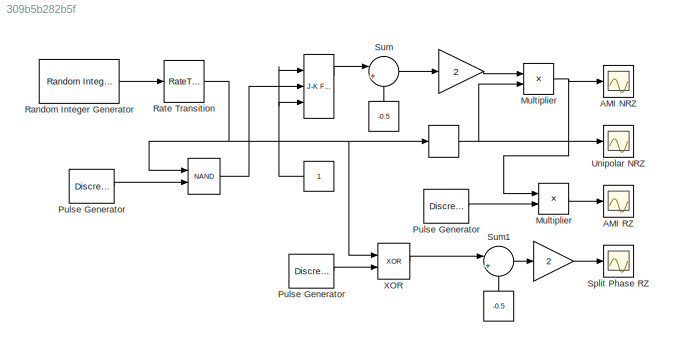
MODEL slx_309b5b282b5f
KIND model
BLOCK [Constant]  
  Value = -0.5
BLOCK [Gain]    
  Gain = 2
  OutDataTypeStr = Inherit: Inherit via internal rule
  ParamDataTypeStr = Inherit: Inherit via internal rule
  SaturateOnIntegerOverflow = off
BLOCK [Delay]      
  DelayLength = 1
  InputPortMap = u0
  InputProcessing = Inherited
  Ports = [1, 1]
BLOCK [Gain]       
  Gain = 2
  OutDataTypeStr = Inherit: Inherit via internal rule
  ParamDataTypeStr = Inherit: Inherit via internal rule
  SaturateOnIntegerOverflow = off
BLOCK [Reference]          REF=simulink_extras/Flip Flops/J-K
Flip-Flop
  Ports = [3, 2]
  SourceBlock = simulink_extras/Flip Flops/J-K\nFlip-Flop
  SourceType = JKFlipFlop
  initial_condition = 0
BLOCK [Logic]         
  AllPortsSameDT = off
  IconShape = distinctive
  Operator = NAND
  OutDataTypeStr = boolean
  Ports = [2, 1]
BLOCK [Constant]              
  Value = -0.5
BLOCK [Constant]               
  OutDataTypeStr = boolean
BLOCK [Scope] AMI NRZ
  DataFormat = StructureWithTime
  Floating = off
  NumInputPorts = 1
  Ports = [1]
  SampleTime = 0
  ShowLegends = off
  YMax = 1.5
  YMin = -1.5
BLOCK [Scope] AMI RZ
  DataFormat = StructureWithTime
  Floating = off
  NumInputPorts = 1
  Ports = [1]
  SampleTime = 0
  SaveName = ScopeData1
  ShowLegends = off
  YMax = 1.5
  YMin = -1.5
BLOCK [Product] Multiplier
  InputSameDT = off
  OutDataTypeStr = Inherit: Inherit via internal rule
  Ports = [2, 1]
  SaturateOnIntegerOverflow = off
BLOCK [Product] Multiplier 
  InputSameDT = off
  OutDataTypeStr = Inherit: Inherit via internal rule
  Ports = [2, 1]
  SaturateOnIntegerOverflow = off
BLOCK [DiscretePulseGenerator] Pulse Generator
  Period = 50
  PhaseDelay = 1
  Ports = [0, 1]
  PulseWidth = 25
  SampleTime = 2e-5
BLOCK [DiscretePulseGenerator] Pulse Generator 
  Period = 50
  Ports = [0, 1]
  PulseWidth = 25
  SampleTime = 2e-5
BLOCK [DiscretePulseGenerator] Pulse Generator  
  Period = 50
  PhaseDelay = 1
  Ports = [0, 1]
  SampleTime = 2e-5
BLOCK [Reference] Random Integer Generator  REF=commrandsrc2/Random Integer
Generator
  Ports = [0, 1]
  SourceBlock = commrandsrc2/Random Integer\nGenerator
  SourceType = Random Integer Generator
  Ts = 1e-3
  frameBased = off
  mul = 2
  orient = off
  outDataType = double
  sampPerFrame = 1
  seed = randseed
BLOCK [RateTransition] Rate Transition
BLOCK [Scope] Split Phase RZ
  DataFormat = StructureWithTime
  Floating = off
  NumInputPorts = 1
  Ports = [1]
  SampleTime = 0
  SaveName = ScopeData3
  ShowLegends = off
  YMax = 1.5
  YMin = -1.5
BLOCK [Sum] Sum
  IconShape = round
  InputSameDT = off
  Inputs = |++
  OutDataTypeStr = Inherit: Inherit via internal rule
  Ports = [2, 1]
  SaturateOnIntegerOverflow = off
BLOCK [Sum] Sum1
  IconShape = round
  InputSameDT = off
  Inputs = |++
  OutDataTypeStr = Inherit: Inherit via internal rule
  Ports = [2, 1]
  SaturateOnIntegerOverflow = off
BLOCK [Scope] Unipolar NRZ
  DataFormat = StructureWithTime
  Floating = off
  NumInputPorts = 1
  Ports = [1]
  SampleTime = 0
  SaveName = ScopeData2
  ShowLegends = off
  YMax = 1.5
  YMin = -1.5
BLOCK [Logic] XOR
  AllPortsSameDT = off
  IconShape = distinctive
  Operator = XOR
  OutDataTypeStr = boolean
  Ports = [2, 1]
NET               :1 ->        :1,        :3
LINE              :1 -> Sum1:2
LINE         :1 ->        :2
LINE        :1 -> Sum:1
LINE       :1 -> Split Phase RZ:1
NET      :1 -> Multiplier:2, Unipolar NRZ:1
LINE    :1 -> Multiplier:1
LINE  :1 -> Sum:2
LINE Multiplier :1 -> AMI RZ:1
NET Multiplier:1 -> AMI NRZ:1, Multiplier :1
LINE Pulse Generator  :1 ->         :2
LINE Pulse Generator :1 -> XOR:2
LINE Pulse Generator:1 -> Multiplier :2
LINE Random Integer Generator:1 -> Rate Transition:1
NET Rate Transition:1 ->         :1,      :1, XOR:1
LINE Sum1:1 ->       :1
LINE Sum:1 ->    :1
LINE XOR:1 -> Sum1:1
note: NET lines group one-source signal fan-out (src -> all destinations, sorted); 1:1 wires keep LINE
